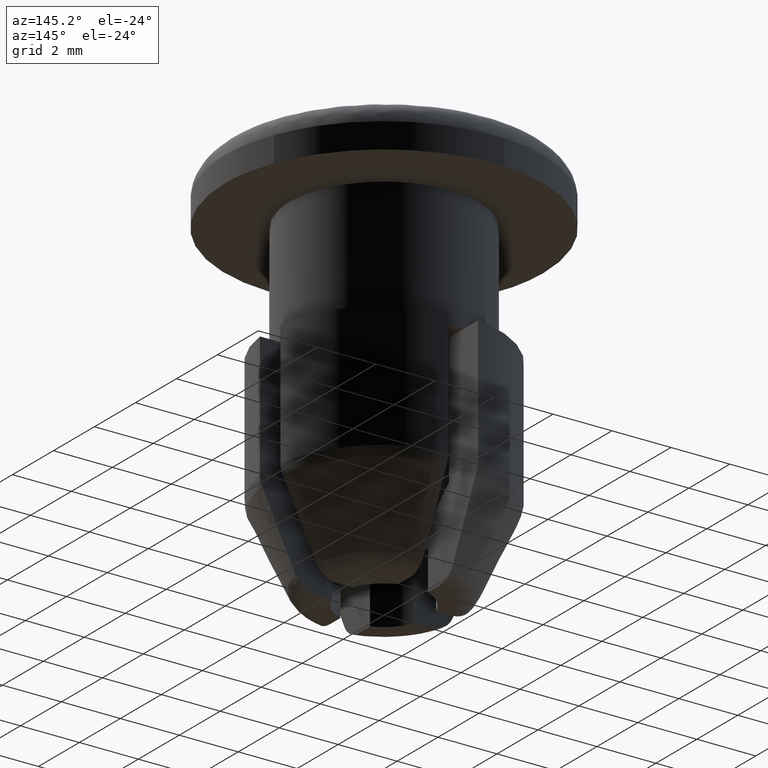
[diagram: clean part render]
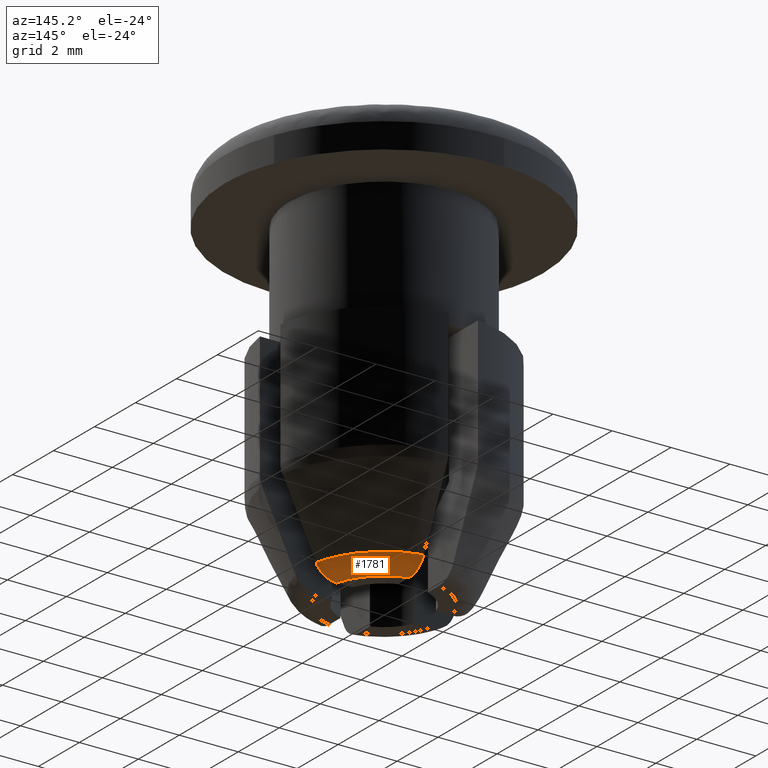
[diagram: same view with one face highlighted and labeled with its STEP entity id]
A machine part, auxiliary view. The second image highlights one B-rep face of the part: STEP entity #1781.
In plain terms, the highlighted face is a freeform B-spline surface patch.
Its self-contained STEP definition (entity closure, byte-faithful):
#1507=CARTESIAN_POINT('',(1.959617758645800,0.500000000000000,-13.500299999999999));
#1508=VERTEX_POINT('',#1507);
#1529=CARTESIAN_POINT('',(0.500000000000000,1.959617758645800,-13.500299999999999));
#1530=VERTEX_POINT('',#1529);
#1536=CARTESIAN_POINT('',(0.500000000000001,1.959617758645803,-13.500299999999999));
#1537=CARTESIAN_POINT('',(1.662901377916501,1.662901377916501,-13.500300000000003));
#1538=CARTESIAN_POINT('',(1.959617758645803,0.500000000000001,-13.500299999999999));
#1546=(BOUNDED_CURVE()B_SPLINE_CURVE(2,(#1536,#1537,#1538),.UNSPECIFIED.,.F.,.U.)CURVE()GEOMETRIC_REPRESENTATION_ITEM()QUASI_UNIFORM_CURVE()RATIONAL_B_SPLINE_CURVE((1.0,0.859974483912828,1.0))REPRESENTATION_ITEM(''));
#1547=EDGE_CURVE('',#1530,#1508,#1546,.T.);
#1708=CARTESIAN_POINT('',(0.352734620559445,2.698645826319179,-13.021626771915608));
#1709=CARTESIAN_POINT('',(2.427462303505342,2.427462303505342,-13.021626771915605));
#1710=CARTESIAN_POINT('',(2.698645826319179,0.352734620559445,-13.021626771915608));
#1711=CARTESIAN_POINT('',(0.327245037292914,2.503634184457258,-13.528440481045426));
#1712=CARTESIAN_POINT('',(2.252047136110007,2.252047136110007,-13.528440481045424));
#1713=CARTESIAN_POINT('',(2.503634184457258,0.327245037292914,-13.528440481045426));
#1714=CARTESIAN_POINT('',(0.256888753434289,1.965363539264359,-13.499215475931072));
#1715=CARTESIAN_POINT('',(1.767866630633510,1.767866630633510,-13.499215475931070));
#1716=CARTESIAN_POINT('',(1.965363539264359,0.256888753434289,-13.499215475931072));
#1724=(BOUNDED_SURFACE()B_SPLINE_SURFACE(2,2,((#1708,#1711,#1714),(#1709,#1712,#1715),(#1710,#1713,#1716)),.UNSPECIFIED.,.F.,.F.,.U.)B_SPLINE_SURFACE_WITH_KNOTS((3,3),(3,3),(0.0,3.701073293588391),(0.0,0.972917662462895),.UNSPECIFIED.)GEOMETRIC_REPRESENTATION_ITEM()RATIONAL_B_SPLINE_SURFACE(((0.855282404769445,0.692124573890833,0.854365498112586),(0.678057418842422,0.548707888146415,0.677330506471020),(0.855282404769445,0.692124573890833,0.854365498112586)))REPRESENTATION_ITEM('')SURFACE());
#1725=CARTESIAN_POINT('',(2.659426441461120,0.500000000000000,-13.058784187287420));
#1726=VERTEX_POINT('',#1725);
#1727=CARTESIAN_POINT('',(1.959617758645800,0.500000000000000,-13.500299999999999));
#1728=CARTESIAN_POINT('',(1.995870260834213,0.500000000000000,-13.500299999999999));
#1729=CARTESIAN_POINT('',(2.032074988127340,0.500000000000000,-13.497844263011711));
#1730=CARTESIAN_POINT('',(2.104385885043721,0.500000000000000,-13.487866703302871));
#1731=CARTESIAN_POINT('',(2.140582571796804,0.500000000000000,-13.480273188047519));
#1732=CARTESIAN_POINT('',(2.210582539605143,0.500000000000000,-13.460385630809400));
#1733=CARTESIAN_POINT('',(2.244676879156075,0.500000000000000,-13.448069990180750));
#1734=CARTESIAN_POINT('',(2.311047923019859,0.500000000000000,-13.418678363481970));
#1735=CARTESIAN_POINT('',(2.343499881206968,0.500000000000000,-13.401491538657289));
#1736=CARTESIAN_POINT('',(2.436762051251562,0.500000000000000,-13.343091250395910));
#1737=CARTESIAN_POINT('',(2.492105625441049,0.500000000000000,-13.296233015496689));
#1738=CARTESIAN_POINT('',(2.564766211409184,0.500000000000000,-13.213933349785490));
#1739=CARTESIAN_POINT('',(2.587089104371746,0.500000000000000,-13.184554053184931));
#1740=CARTESIAN_POINT('',(2.626723384111980,0.500000000000000,-13.123628106619501));
#1741=CARTESIAN_POINT('',(2.644237852533169,0.500000000000000,-13.091863515307750));
#1742=CARTESIAN_POINT('',(2.659426441461120,0.500000000000000,-13.058784187287420));
#1743=B_SPLINE_CURVE_WITH_KNOTS('',3,(#1727,#1728,#1729,#1730,#1731,#1732,#1733,#1734,#1735,#1736,#1737,#1738,#1739,#1740,#1741,#1742),.UNSPECIFIED.,.F.,.U.,(4,2,2,2,2,2,2,4),(0.0,0.124999999999999,0.249999999999999,0.374999999999998,0.499999999999997,0.749999999999998,0.874999999999999,1.0),.UNSPECIFIED.);
#1744=EDGE_CURVE('',#1508,#1726,#1743,.T.);
#1745=ORIENTED_EDGE('',*,*,#1744,.F.);
#1746=ORIENTED_EDGE('',*,*,#1547,.F.);
#1747=CARTESIAN_POINT('',(0.500000000000000,2.659426441460740,-13.058784187287319));
#1748=VERTEX_POINT('',#1747);
#1749=CARTESIAN_POINT('',(0.500000000000000,2.659426441460704,-13.058784187287300));
#1750=CARTESIAN_POINT('',(0.500000000000000,2.644226354591672,-13.091888556750339));
#1751=CARTESIAN_POINT('',(0.500000000000000,2.626706277244488,-13.123655786804759));
#1752=CARTESIAN_POINT('',(0.500000000000000,2.587089299350503,-13.184552369420500));
#1753=CARTESIAN_POINT('',(0.500000000000000,2.564806889483633,-13.213882668645370));
#1754=CARTESIAN_POINT('',(0.500000000000000,2.492148475958098,-13.296193682178540));
#1755=CARTESIAN_POINT('',(0.500000000000000,2.436782634918585,-13.343084292136391));
#1756=CARTESIAN_POINT('',(0.500000000000000,2.312303127535826,-13.421020849008690));
#1757=CARTESIAN_POINT('',(0.500000000000000,2.245687722935376,-13.450420638515279));
#1758=CARTESIAN_POINT('',(0.500000000000000,2.140400959350120,-13.480320440469701));
#1759=CARTESIAN_POINT('',(0.500000000000000,2.104228906669344,-13.487890772963020));
#1760=CARTESIAN_POINT('',(0.500000000000000,2.032129192638315,-13.497834370797269));
#1761=CARTESIAN_POINT('',(0.500000000000000,1.995941351612820,-13.500300000000010));
#1762=CARTESIAN_POINT('',(0.500000000000000,1.959617758645801,-13.500300000000010));
#1763=B_SPLINE_CURVE_WITH_KNOTS('',3,(#1749,#1750,#1751,#1752,#1753,#1754,#1755,#1756,#1757,#1758,#1759,#1760,#1761,#1762),.UNSPECIFIED.,.F.,.U.,(4,2,2,2,2,2,4),(0.0,0.125000000000000,0.250000000000000,0.500000000000001,0.750000000000001,0.875000000000001,1.0),.UNSPECIFIED.);
#1764=EDGE_CURVE('',#1748,#1530,#1763,.T.);
#1765=ORIENTED_EDGE('',*,*,#1764,.F.);
#1766=CARTESIAN_POINT('',(0.500000000000000,2.659426441460740,-13.058784187287319));
#1767=CARTESIAN_POINT('',(2.317683014058368,2.317683014058309,-13.058784187287298));
#1768=CARTESIAN_POINT('',(2.659426441461120,0.500000000000000,-13.058784187287420));
#1776=(BOUNDED_CURVE()B_SPLINE_CURVE(2,(#1766,#1767,#1768),.UNSPECIFIED.,.F.,.U.)CURVE()GEOMETRIC_REPRESENTATION_ITEM()QUASI_UNIFORM_CURVE()RATIONAL_B_SPLINE_CURVE((1.0,0.825585596460423,1.0))REPRESENTATION_ITEM(''));
#1777=EDGE_CURVE('',#1748,#1726,#1776,.T.);
#1778=ORIENTED_EDGE('',*,*,#1777,.T.);
#1779=EDGE_LOOP('',(#1745,#1746,#1765,#1778));
#1780=FACE_OUTER_BOUND('',#1779,.T.);
#1781=ADVANCED_FACE('',(#1780),#1724,.T.);